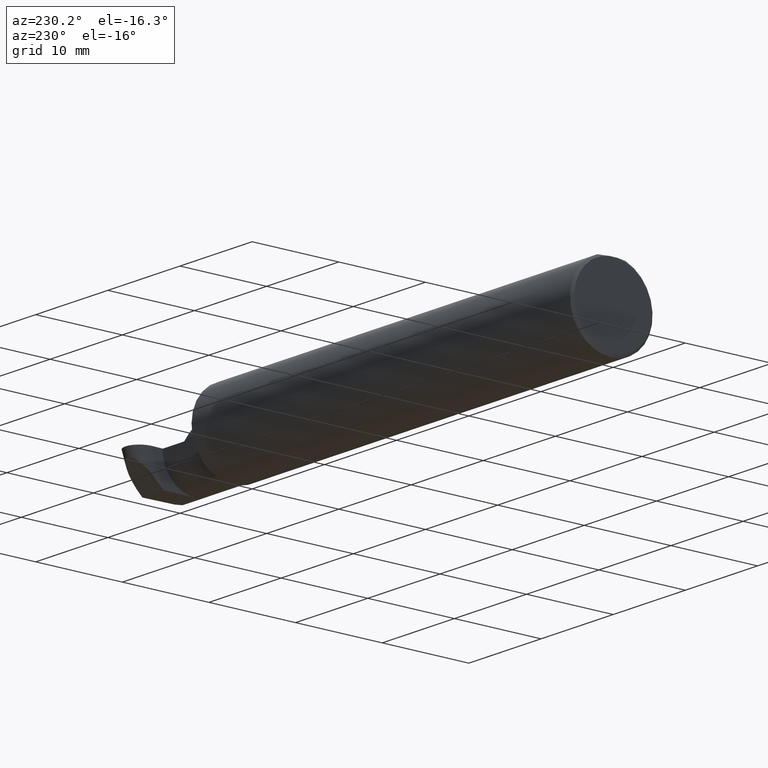
[diagram: clean part render]
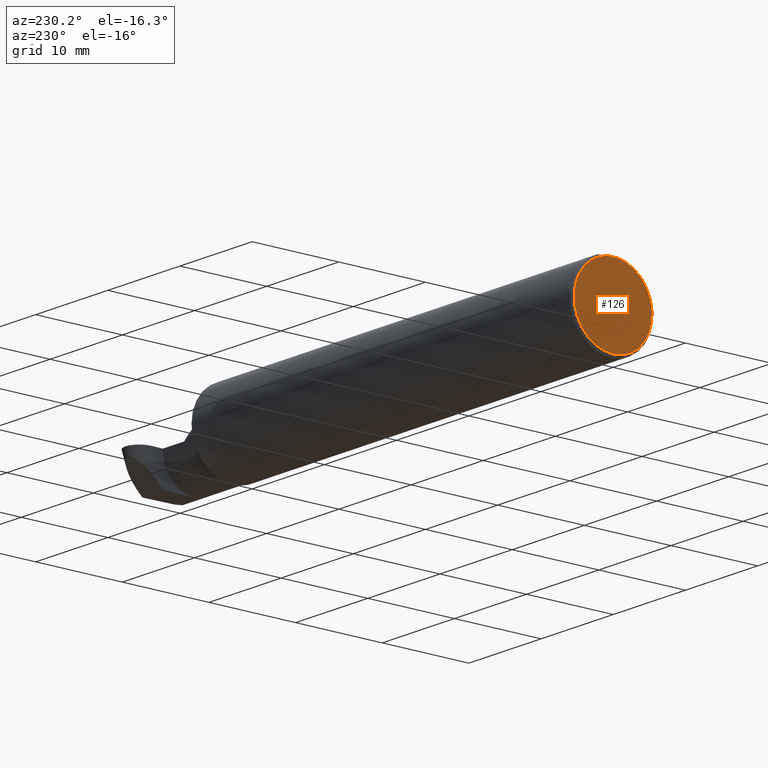
[diagram: same view with one face highlighted and labeled with its STEP entity id]
A machine part, auxiliary view. The second image highlights one B-rep face of the part: STEP entity #126.
In plain terms, the highlighted planar face has unit normal (1, 0, 0).
Its self-contained STEP definition (entity closure, byte-faithful):
#11 = CARTESIAN_POINT ( 'NONE',  ( 0.000000000000000000, 0.01880691362239451242, 0.1763499999999999235 ) ) ;
#60 = DIRECTION ( 'NONE',  ( 0.000000000000000000, 0.000000000000000000, -1.000000000000000000 ) ) ;
#64 = VERTEX_POINT ( 'NONE', #11 ) ;
#103 = EDGE_LOOP ( 'NONE', ( #365, #439, #430 ) ) ;
#114 = PLANE ( 'NONE',  #456 ) ;
#126 = ADVANCED_FACE ( 'NONE', ( #286 ), #114, .F. ) ;
#134 = CARTESIAN_POINT ( 'NONE',  ( 0.000000000000000000, 0.000000000000000000, 0.000000000000000000 ) ) ;
#169 = VERTEX_POINT ( 'NONE', #297 ) ;
#178 = AXIS2_PLACEMENT_3D ( 'NONE', #134, #508, #631 ) ;
#217 = EDGE_CURVE ( 'NONE', #64, #169, #232, .T. ) ;
#226 = CARTESIAN_POINT ( 'NONE',  ( 0.000000000000000000, -0.01880691362239451242, 0.1763499999999999235 ) ) ;
#230 = LINE ( 'NONE', #432, #351 ) ;
#232 = CIRCLE ( 'NONE', #178, 0.1773500000000005072 ) ;
#234 = AXIS2_PLACEMENT_3D ( 'NONE', #468, #364, #372 ) ;
#286 = FACE_OUTER_BOUND ( 'NONE', #103, .T. ) ;
#297 = CARTESIAN_POINT ( 'NONE',  ( 0.000000000000000000, 0.000000000000000000, -0.1773500000000005072 ) ) ;
#331 = DIRECTION ( 'NONE',  ( 1.000000000000000000, 0.000000000000000000, 0.000000000000000000 ) ) ;
#337 = DIRECTION ( 'NONE',  ( -0.000000000000000000, 1.000000000000000000, -0.000000000000000000 ) ) ;
#348 = EDGE_CURVE ( 'NONE', #169, #517, #658, .T. ) ;
#351 = VECTOR ( 'NONE', #337, 39.37007874015748143 ) ;
#364 = DIRECTION ( 'NONE',  ( -1.000000000000000000, -0.000000000000000000, -0.000000000000000000 ) ) ;
#365 = ORIENTED_EDGE ( 'NONE', *, *, #556, .T. ) ;
#372 = DIRECTION ( 'NONE',  ( 0.000000000000000000, 0.000000000000000000, -1.000000000000000000 ) ) ;
#430 = ORIENTED_EDGE ( 'NONE', *, *, #348, .T. ) ;
#432 = CARTESIAN_POINT ( 'NONE',  ( 0.000000000000000000, 0.1873499999999998500, 0.1763499999999999235 ) ) ;
#439 = ORIENTED_EDGE ( 'NONE', *, *, #217, .T. ) ;
#456 = AXIS2_PLACEMENT_3D ( 'NONE', #666, #331, #60 ) ;
#468 = CARTESIAN_POINT ( 'NONE',  ( 0.000000000000000000, 0.000000000000000000, 0.000000000000000000 ) ) ;
#508 = DIRECTION ( 'NONE',  ( -1.000000000000000000, -0.000000000000000000, -0.000000000000000000 ) ) ;
#517 = VERTEX_POINT ( 'NONE', #226 ) ;
#556 = EDGE_CURVE ( 'NONE', #517, #64, #230, .T. ) ;
#631 = DIRECTION ( 'NONE',  ( 0.000000000000000000, 0.000000000000000000, -1.000000000000000000 ) ) ;
#658 = CIRCLE ( 'NONE', #234, 0.1773500000000005072 ) ;
#666 = CARTESIAN_POINT ( 'NONE',  ( 0.000000000000000000, 0.000000000000000000, 0.000000000000000000 ) ) ;